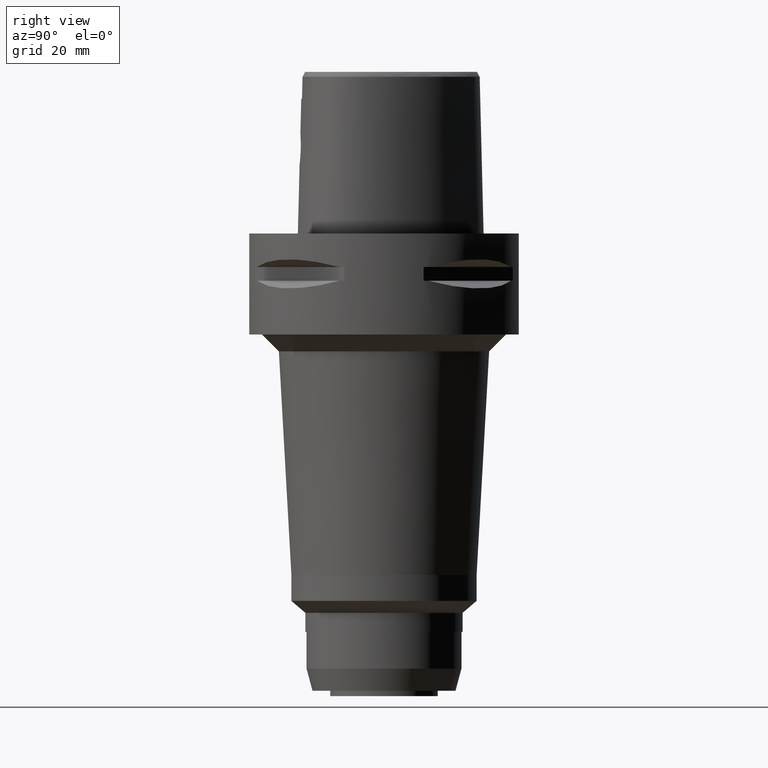
[diagram: clean part render]
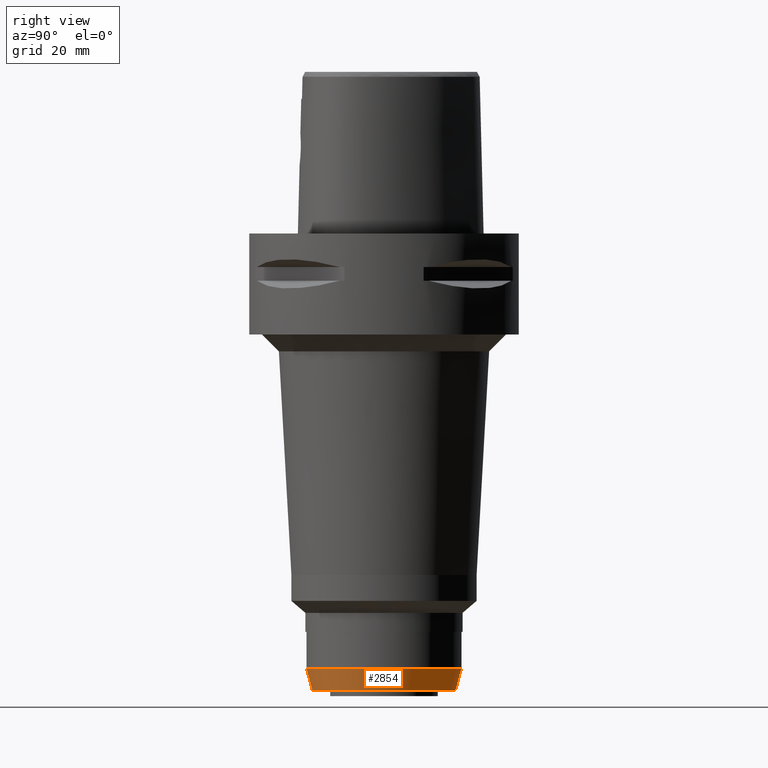
[diagram: same view with one face highlighted and labeled with its STEP entity id]
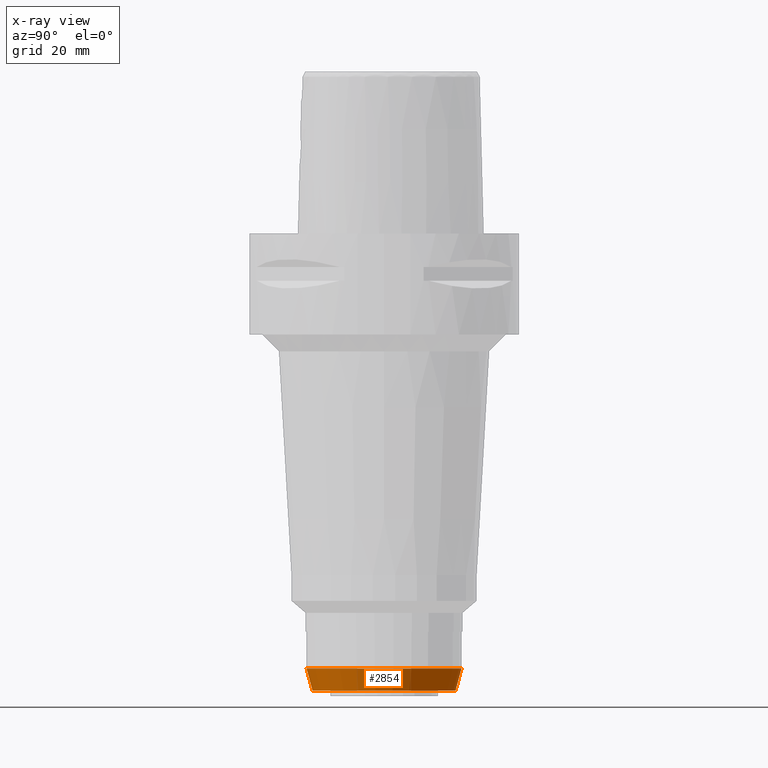
[diagram: x-ray of the same camera — body ghosted, the highlighted face saturated]
A machine part, right view. The second image highlights one B-rep face of the part: STEP entity #2854.
The next image is the same camera in x-ray: the body ghosted, the highlighted face saturated — about 0% of this face is hidden behind the body in this view.
In plain terms, the highlighted conical surface has half-angle 15 deg.
Its self-contained STEP definition (entity closure, byte-faithful):
#754=DIRECTION('',(0.E0,-2.588190451027E-1,-9.659258262890E-1));
#755=VECTOR('',#754,6.832822790708E0);
#756=CARTESIAN_POINT('',(0.E0,2.3E1,-1.292E2));
#757=LINE('',#756,#755);
#761=CARTESIAN_POINT('',(0.E0,0.E0,-1.292E2));
#762=DIRECTION('',(0.E0,0.E0,1.E0));
#763=DIRECTION('',(0.E0,-1.E0,0.E0));
#764=AXIS2_PLACEMENT_3D('',#761,#762,#763);
#777=DIRECTION('',(0.E0,2.588190451027E-1,-9.659258262890E-1));
#778=VECTOR('',#777,6.832822790708E0);
#779=CARTESIAN_POINT('',(0.E0,-2.3E1,-1.292E2));
#780=LINE('',#779,#778);
#784=CARTESIAN_POINT('',(0.E0,0.E0,-1.358E2));
#785=DIRECTION('',(0.E0,0.E0,1.E0));
#786=DIRECTION('',(0.E0,-1.E0,0.E0));
#787=AXIS2_PLACEMENT_3D('',#784,#785,#786);
#1714=CARTESIAN_POINT('',(0.E0,2.3E1,-1.292E2));
#1715=VERTEX_POINT('',#1714);
#1716=CARTESIAN_POINT('',(0.E0,-2.3E1,-1.292E2));
#1717=VERTEX_POINT('',#1716);
#1718=CARTESIAN_POINT('',(0.E0,2.123153532995E1,-1.358E2));
#1719=VERTEX_POINT('',#1718);
#1720=CARTESIAN_POINT('',(0.E0,-2.123153532996E1,-1.358E2));
#1721=VERTEX_POINT('',#1720);
#2840=CARTESIAN_POINT('',(0.E0,0.E0,-1.325E2));
#2841=DIRECTION('',(0.E0,0.E0,1.E0));
#2842=DIRECTION('',(0.E0,1.E0,0.E0));
#2843=AXIS2_PLACEMENT_3D('',#2840,#2841,#2842);
#2844=CONICAL_SURFACE('',#2843,2.211576766498E1,1.5E1);
#2846=ORIENTED_EDGE('',*,*,#2845,.T.);
#2848=ORIENTED_EDGE('',*,*,#2847,.F.);
#2850=ORIENTED_EDGE('',*,*,#2849,.F.);
#2851=ORIENTED_EDGE('',*,*,#2833,.T.);
#2852=EDGE_LOOP('',(#2846,#2848,#2850,#2851));
#2853=FACE_OUTER_BOUND('',#2852,.F.);
#765=CIRCLE('',#764,2.3E1);
#788=CIRCLE('',#787,2.123153532996E1);
#2833=EDGE_CURVE('',#1717,#1715,#765,.T.);
#2845=EDGE_CURVE('',#1715,#1719,#757,.T.);
#2847=EDGE_CURVE('',#1721,#1719,#788,.T.);
#2849=EDGE_CURVE('',#1717,#1721,#780,.T.);
#2854=ADVANCED_FACE('',(#2853),#2844,.T.);